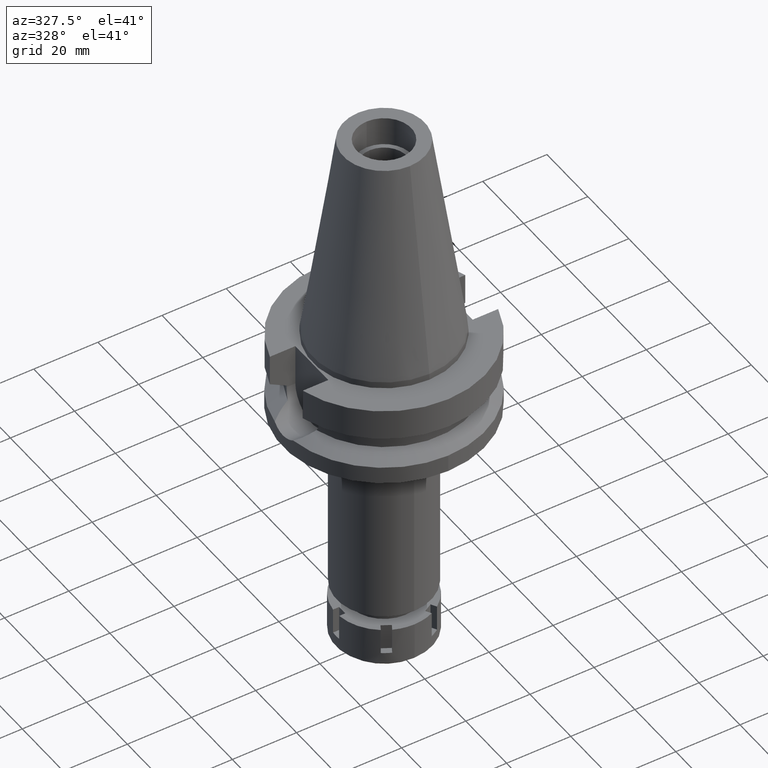
[diagram: clean part render]
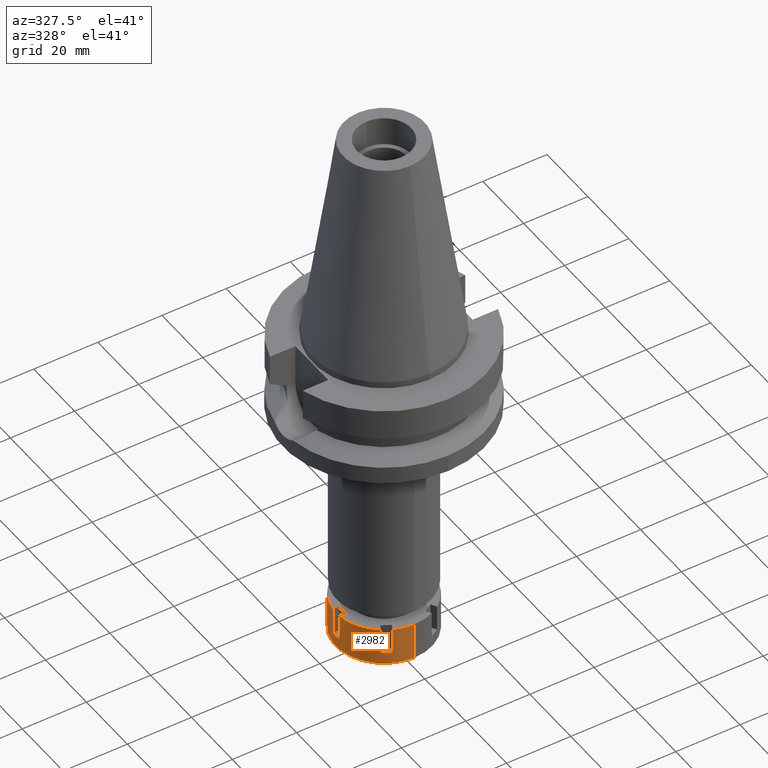
[diagram: same view with one face highlighted and labeled with its STEP entity id]
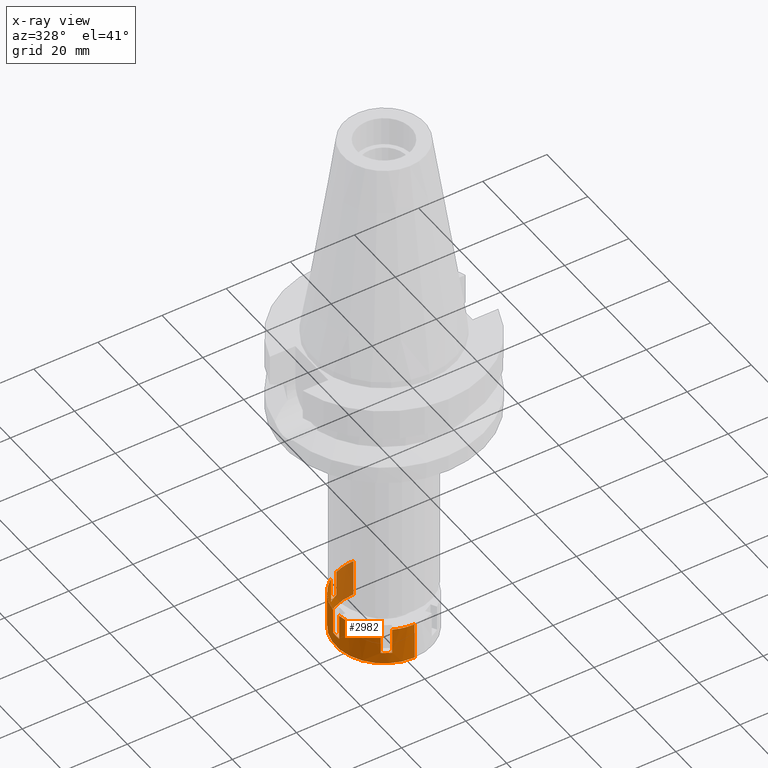
[diagram: x-ray of the same camera — body ghosted, the highlighted face saturated]
A machine part, auxiliary view. The second image highlights one B-rep face of the part: STEP entity #2982.
The next image is the same camera in x-ray: the body ghosted, the highlighted face saturated — about 18% of this face is hidden behind the body in this view.
In plain terms, the highlighted cylindrical surface (partial cylindrical patch) has radius 15 mm, axis along (0, 0, -1).
Its self-contained STEP definition (entity closure, byte-faithful):
#6 = AXIS2_PLACEMENT_3D ( 'NONE', #3546, #1013, #2997 ) ;
#44 = LINE ( 'NONE', #1681, #3238 ) ;
#58 = LINE ( 'NONE', #3107, #3367 ) ;
#75 = LINE ( 'NONE', #1193, #3487 ) ;
#110 = VERTEX_POINT ( 'NONE', #2292 ) ;
#143 = CARTESIAN_POINT ( 'NONE',  ( 0.0000000000000000000, -15.00000000000000000, 0.0000000000000000000 ) ) ;
#164 = DIRECTION ( 'NONE',  ( 0.0000000000000000000, 0.0000000000000000000, -1.000000000000000000 ) ) ;
#180 = VERTEX_POINT ( 'NONE', #143 ) ;
#242 = VERTEX_POINT ( 'NONE', #2595 ) ;
#243 = EDGE_CURVE ( 'NONE', #1903, #518, #75, .T. ) ;
#305 = VECTOR ( 'NONE', #810, 1000.000000000000000 ) ;
#307 = CIRCLE ( 'NONE', #1365, 14.99999999999999645 ) ;
#319 = CARTESIAN_POINT ( 'NONE',  ( -6.163367672623000004, -13.67526595470999951, -8.000000000000000000 ) ) ;
#326 = ORIENTED_EDGE ( 'NONE', *, *, #749, .T. ) ;
#327 = EDGE_CURVE ( 'NONE', #180, #110, #44, .T. ) ;
#375 = ORIENTED_EDGE ( 'NONE', *, *, #2617, .F. ) ;
#380 = CARTESIAN_POINT ( 'NONE',  ( 0.0000000000000000000, 0.0000000000000000000, -8.000000000000000000 ) ) ;
#407 = AXIS2_PLACEMENT_3D ( 'NONE', #3543, #3011, #748 ) ;
#437 = EDGE_CURVE ( 'NONE', #3375, #1232, #3623, .T. ) ;
#506 = CIRCLE ( 'NONE', #2574, 15.00000000000000355 ) ;
#508 = DIRECTION ( 'NONE',  ( 0.0000000000000000000, 0.0000000000000000000, 1.000000000000000000 ) ) ;
#512 = DIRECTION ( 'NONE',  ( -0.5840962589317860720, 0.8116843969806811776, 0.0000000000000000000 ) ) ;
#518 = VERTEX_POINT ( 'NONE', #2566 ) ;
#600 = ORIENTED_EDGE ( 'NONE', *, *, #2921, .F. ) ;
#683 = CARTESIAN_POINT ( 'NONE',  ( -6.163367672621999915, 13.67526595470999951, 0.0000000000000000000 ) ) ;
#748 = DIRECTION ( 'NONE',  ( 0.0000000000000000000, -1.000000000000000000, 0.0000000000000000000 ) ) ;
#749 = EDGE_CURVE ( 'NONE', #3314, #2363, #765, .T. ) ;
#765 = CIRCLE ( 'NONE', #6, 15.00000000000000178 ) ;
#772 = DIRECTION ( 'NONE',  ( 0.0000000000000000000, 0.0000000000000000000, -1.000000000000000000 ) ) ;
#793 = DIRECTION ( 'NONE',  ( 0.0000000000000000000, 0.0000000000000000000, -1.000000000000000000 ) ) ;
#804 = DIRECTION ( 'NONE',  ( 0.0000000000000000000, 0.0000000000000000000, -1.000000000000000000 ) ) ;
#805 = VECTOR ( 'NONE', #3163, 1000.000000000000000 ) ;
#810 = DIRECTION ( 'NONE',  ( 0.0000000000000000000, 0.0000000000000000000, 1.000000000000000000 ) ) ;
#850 = CARTESIAN_POINT ( 'NONE',  ( 0.0000000000000000000, 0.0000000000000000000, 0.0000000000000000000 ) ) ;
#895 = LINE ( 'NONE', #1781, #805 ) ;
#932 = DIRECTION ( 'NONE',  ( 0.0000000000000000000, 0.0000000000000000000, -1.000000000000000000 ) ) ;
#953 = CIRCLE ( 'NONE', #3307, 15.00000000000000000 ) ;
#960 = EDGE_CURVE ( 'NONE', #242, #3330, #58, .T. ) ;
#984 = CIRCLE ( 'NONE', #2579, 15.00000000000000000 ) ;
#988 = ORIENTED_EDGE ( 'NONE', *, *, #2505, .T. ) ;
#999 = DIRECTION ( 'NONE',  ( 0.0000000000000000000, 0.0000000000000000000, -1.000000000000000000 ) ) ;
#1012 = ORIENTED_EDGE ( 'NONE', *, *, #1512, .T. ) ;
#1013 = DIRECTION ( 'NONE',  ( 0.0000000000000000000, 0.0000000000000000000, -1.000000000000000000 ) ) ;
#1075 = EDGE_LOOP ( 'NONE', ( #1519, #1012, #1424, #988, #2272, #1375, #375, #326, #1334, #2682, #2632, #2412, #600, #3649, #2734, #1214 ) ) ;
#1103 = AXIS2_PLACEMENT_3D ( 'NONE', #380, #3497, #2583 ) ;
#1178 = CARTESIAN_POINT ( 'NONE',  ( 0.0000000000000000000, 0.0000000000000000000, -11.59999999999999964 ) ) ;
#1193 = CARTESIAN_POINT ( 'NONE',  ( -6.163367672621999915, 13.67526595470999951, 0.0000000000000000000 ) ) ;
#1214 = ORIENTED_EDGE ( 'NONE', *, *, #1698, .T. ) ;
#1232 = VERTEX_POINT ( 'NONE', #2974 ) ;
#1248 = VERTEX_POINT ( 'NONE', #2144 ) ;
#1270 = CARTESIAN_POINT ( 'NONE',  ( -8.761443883976001601, -12.17526595470999951, 0.0000000000000000000 ) ) ;
#1334 = ORIENTED_EDGE ( 'NONE', *, *, #2105, .F. ) ;
#1364 = VERTEX_POINT ( 'NONE', #1952 ) ;
#1365 = AXIS2_PLACEMENT_3D ( 'NONE', #3401, #793, #512 ) ;
#1375 = ORIENTED_EDGE ( 'NONE', *, *, #1494, .T. ) ;
#1424 = ORIENTED_EDGE ( 'NONE', *, *, #1849, .T. ) ;
#1477 = DIRECTION ( 'NONE',  ( 0.0000000000000000000, -1.000000000000000000, 0.0000000000000000000 ) ) ;
#1494 = EDGE_CURVE ( 'NONE', #180, #1711, #953, .T. ) ;
#1510 = EDGE_CURVE ( 'NONE', #3262, #3330, #2243, .T. ) ;
#1512 = EDGE_CURVE ( 'NONE', #1903, #2571, #3006, .T. ) ;
#1519 = ORIENTED_EDGE ( 'NONE', *, *, #243, .F. ) ;
#1563 = CARTESIAN_POINT ( 'NONE',  ( -14.92481155659999992, 1.500000000000000000, 0.0000000000000000000 ) ) ;
#1676 = CARTESIAN_POINT ( 'NONE',  ( 0.0000000000000000000, 15.00000000000000000, 0.0000000000000000000 ) ) ;
#1681 = CARTESIAN_POINT ( 'NONE',  ( 0.0000000000000000000, -15.00000000000000000, 0.0000000000000000000 ) ) ;
#1683 = DIRECTION ( 'NONE',  ( 0.0000000000000000000, 0.0000000000000000000, -1.000000000000000000 ) ) ;
#1698 = EDGE_CURVE ( 'NONE', #242, #518, #307, .T. ) ;
#1711 = VERTEX_POINT ( 'NONE', #2567 ) ;
#1712 = DIRECTION ( 'NONE',  ( 0.0000000000000000000, 0.0000000000000000000, 1.000000000000000000 ) ) ;
#1746 = CARTESIAN_POINT ( 'NONE',  ( -8.761443883976001601, 12.17526595470999951, 0.0000000000000000000 ) ) ;
#1753 = DIRECTION ( 'NONE',  ( 0.0000000000000000000, 0.0000000000000000000, 1.000000000000000000 ) ) ;
#1781 = CARTESIAN_POINT ( 'NONE',  ( 0.0000000000000000000, 15.00000000000000000, 0.0000000000000000000 ) ) ;
#1849 = EDGE_CURVE ( 'NONE', #2571, #1364, #895, .T. ) ;
#1903 = VERTEX_POINT ( 'NONE', #683 ) ;
#1952 = CARTESIAN_POINT ( 'NONE',  ( 0.0000000000000000000, 15.00000000000000000, -11.59999999999999964 ) ) ;
#2020 = CARTESIAN_POINT ( 'NONE',  ( -14.92481155659999992, 1.500000000000000000, 0.0000000000000000000 ) ) ;
#2064 = CARTESIAN_POINT ( 'NONE',  ( -8.761443883976001601, -12.17526595470999951, -8.000000000000000000 ) ) ;
#2105 = EDGE_CURVE ( 'NONE', #3053, #2363, #3563, .T. ) ;
#2144 = CARTESIAN_POINT ( 'NONE',  ( -14.92481155659999992, 1.500000000000000000, -8.000000000000000000 ) ) ;
#2157 = VECTOR ( 'NONE', #508, 1000.000000000000000 ) ;
#2203 = EDGE_CURVE ( 'NONE', #3053, #1232, #506, .T. ) ;
#2243 = CIRCLE ( 'NONE', #2905, 15.00000000000000533 ) ;
#2245 = DIRECTION ( 'NONE',  ( -0.5840962589317197917, -0.8116843969807286951, 0.0000000000000000000 ) ) ;
#2268 = CARTESIAN_POINT ( 'NONE',  ( -14.92481155659999992, -1.500000000000000000, -8.000000000000000000 ) ) ;
#2272 = ORIENTED_EDGE ( 'NONE', *, *, #327, .F. ) ;
#2275 = CARTESIAN_POINT ( 'NONE',  ( -6.163367672623000004, -13.67526595470999951, -8.000000000000000000 ) ) ;
#2277 = VECTOR ( 'NONE', #772, 1000.000000000000000 ) ;
#2292 = CARTESIAN_POINT ( 'NONE',  ( 0.0000000000000000000, -15.00000000000000000, -11.59999999999999964 ) ) ;
#2318 = CARTESIAN_POINT ( 'NONE',  ( 0.0000000000000000000, 0.0000000000000000000, 0.0000000000000000000 ) ) ;
#2363 = VERTEX_POINT ( 'NONE', #2064 ) ;
#2412 = ORIENTED_EDGE ( 'NONE', *, *, #2786, .T. ) ;
#2505 = EDGE_CURVE ( 'NONE', #1364, #110, #984, .T. ) ;
#2566 = CARTESIAN_POINT ( 'NONE',  ( -6.163367672621999915, 13.67526595470999951, -8.000000000000000000 ) ) ;
#2567 = CARTESIAN_POINT ( 'NONE',  ( -6.163367672623000004, -13.67526595470999951, 0.0000000000000000000 ) ) ;
#2571 = VERTEX_POINT ( 'NONE', #1676 ) ;
#2574 = AXIS2_PLACEMENT_3D ( 'NONE', #850, #804, #2245 ) ;
#2579 = AXIS2_PLACEMENT_3D ( 'NONE', #1178, #1753, #2840 ) ;
#2583 = DIRECTION ( 'NONE',  ( -0.9949874371066197432, -0.1000000000000019623, 0.0000000000000000000 ) ) ;
#2595 = CARTESIAN_POINT ( 'NONE',  ( -8.761443883976001601, 12.17526595470999951, -8.000000000000000000 ) ) ;
#2617 = EDGE_CURVE ( 'NONE', #3314, #1711, #2842, .T. ) ;
#2632 = ORIENTED_EDGE ( 'NONE', *, *, #437, .F. ) ;
#2682 = ORIENTED_EDGE ( 'NONE', *, *, #2203, .T. ) ;
#2685 = FACE_OUTER_BOUND ( 'NONE', #1075, .T. ) ;
#2734 = ORIENTED_EDGE ( 'NONE', *, *, #960, .F. ) ;
#2743 = CARTESIAN_POINT ( 'NONE',  ( 0.0000000000000000000, 0.0000000000000000000, 0.0000000000000000000 ) ) ;
#2786 = EDGE_CURVE ( 'NONE', #3375, #1248, #2988, .T. ) ;
#2840 = DIRECTION ( 'NONE',  ( 0.0000000000000000000, 1.000000000000000000, 0.0000000000000000000 ) ) ;
#2842 = LINE ( 'NONE', #319, #2157 ) ;
#2869 = CARTESIAN_POINT ( 'NONE',  ( 0.0000000000000000000, 0.0000000000000000000, 0.0000000000000000000 ) ) ;
#2886 = DIRECTION ( 'NONE',  ( 0.0000000000000000000, 0.0000000000000000000, -1.000000000000000000 ) ) ;
#2889 = DIRECTION ( 'NONE',  ( 0.0000000000000000000, 0.0000000000000000000, -1.000000000000000000 ) ) ;
#2905 = AXIS2_PLACEMENT_3D ( 'NONE', #2318, #1683, #3166 ) ;
#2921 = EDGE_CURVE ( 'NONE', #3262, #1248, #2993, .T. ) ;
#2974 = CARTESIAN_POINT ( 'NONE',  ( -14.92481155659999992, -1.500000000000000000, 0.0000000000000000000 ) ) ;
#2982 = ADVANCED_FACE ( 'NONE', ( #2685 ), #3572, .T. ) ;
#2988 = CIRCLE ( 'NONE', #1103, 15.00000000000000533 ) ;
#2993 = LINE ( 'NONE', #1563, #3529 ) ;
#2997 = DIRECTION ( 'NONE',  ( -0.4108911781748959546, -0.9116843969806908143, 0.0000000000000000000 ) ) ;
#3006 = CIRCLE ( 'NONE', #3433, 14.99999999999999645 ) ;
#3011 = DIRECTION ( 'NONE',  ( 0.0000000000000000000, 0.0000000000000000000, -1.000000000000000000 ) ) ;
#3053 = VERTEX_POINT ( 'NONE', #3243 ) ;
#3107 = CARTESIAN_POINT ( 'NONE',  ( -8.761443883976001601, 12.17526595470999951, -8.000000000000000000 ) ) ;
#3163 = DIRECTION ( 'NONE',  ( 0.0000000000000000000, 0.0000000000000000000, -1.000000000000000000 ) ) ;
#3166 = DIRECTION ( 'NONE',  ( -0.9949874371066197432, 0.1000000000000019623, 0.0000000000000000000 ) ) ;
#3238 = VECTOR ( 'NONE', #2886, 1000.000000000000000 ) ;
#3243 = CARTESIAN_POINT ( 'NONE',  ( -8.761443883976001601, -12.17526595470999951, 0.0000000000000000000 ) ) ;
#3262 = VERTEX_POINT ( 'NONE', #2020 ) ;
#3266 = DIRECTION ( 'NONE',  ( -0.4108911781748131320, 0.9116843969807282289, 0.0000000000000000000 ) ) ;
#3307 = AXIS2_PLACEMENT_3D ( 'NONE', #2869, #932, #1477 ) ;
#3314 = VERTEX_POINT ( 'NONE', #2275 ) ;
#3330 = VERTEX_POINT ( 'NONE', #1746 ) ;
#3367 = VECTOR ( 'NONE', #1712, 1000.000000000000000 ) ;
#3375 = VERTEX_POINT ( 'NONE', #3470 ) ;
#3401 = CARTESIAN_POINT ( 'NONE',  ( 0.0000000000000000000, 0.0000000000000000000, -8.000000000000000000 ) ) ;
#3433 = AXIS2_PLACEMENT_3D ( 'NONE', #2743, #999, #3266 ) ;
#3470 = CARTESIAN_POINT ( 'NONE',  ( -14.92481155659999992, -1.500000000000000000, -8.000000000000000000 ) ) ;
#3487 = VECTOR ( 'NONE', #2889, 1000.000000000000000 ) ;
#3497 = DIRECTION ( 'NONE',  ( 0.0000000000000000000, 0.0000000000000000000, -1.000000000000000000 ) ) ;
#3529 = VECTOR ( 'NONE', #164, 1000.000000000000000 ) ;
#3543 = CARTESIAN_POINT ( 'NONE',  ( 0.0000000000000000000, 0.0000000000000000000, 0.0000000000000000000 ) ) ;
#3546 = CARTESIAN_POINT ( 'NONE',  ( 0.0000000000000000000, 0.0000000000000000000, -8.000000000000000000 ) ) ;
#3563 = LINE ( 'NONE', #1270, #2277 ) ;
#3572 = CYLINDRICAL_SURFACE ( 'NONE', #407, 15.00000000000000000 ) ;
#3623 = LINE ( 'NONE', #2268, #305 ) ;
#3649 = ORIENTED_EDGE ( 'NONE', *, *, #1510, .T. ) ;